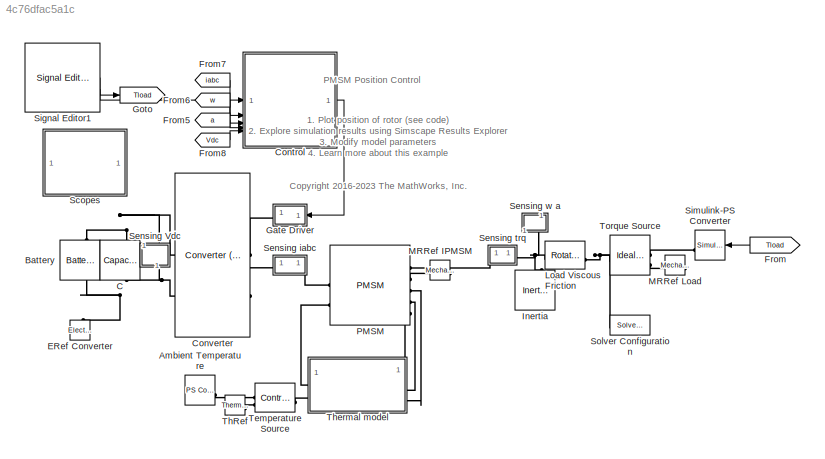
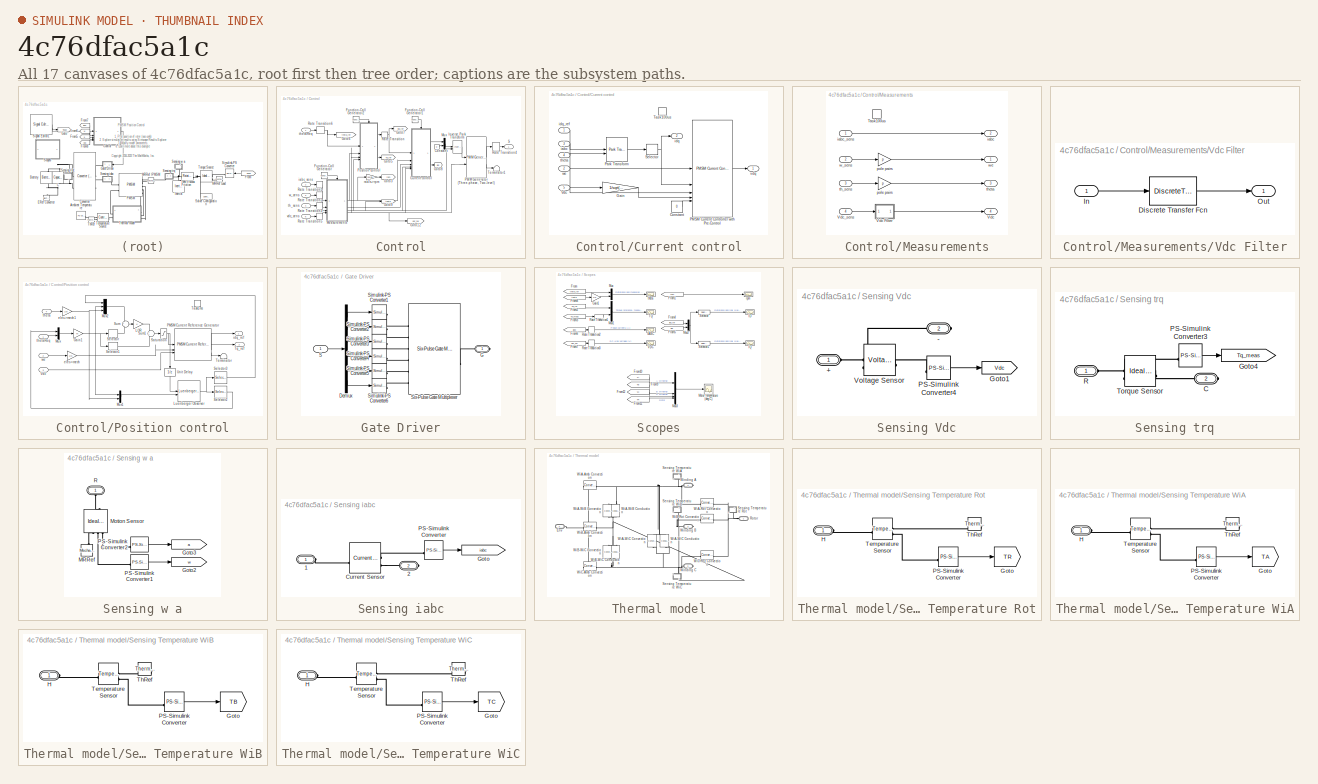
[diagram: thumbnail index - all 17 canvases of the model, root first then tree order]
MODEL slx_4c76dfac5a1c
KIND model
CONFIG AbsTol = auto
CONFIG EnableMultiTasking = off
CONFIG FixedStep = Ts
CONFIG MaxStep = auto
CONFIG MinStep = auto
CONFIG PreLoadFcn = PMSMPositionControlData;
CONFIG RelTol = 1e-3
CONFIG SampleTimeConstraint = Unconstrained
CONFIG SolverName = FixedStepDiscrete
CONFIG StartTime = 0.0
CONFIG StopTime = 4.5
BLOCK [Reference] Ambient Temperature  REF=fl_lib/Physical Signals/Sources/PS Constant
  SourceBlock = fl_lib/Physical Signals/Sources/PS Constant
  SourceType = PS Constant
BLOCK [Reference] Battery  REF=batteryecm_lib/Battery
  NameLocation = left
  SourceBlock = batteryecm_lib/Battery
  SourceType = Battery
BLOCK [Reference] C  REF=fl_lib/Electrical/Electrical Elements/Capacitor
  NameLocation = left
  SourceBlock = fl_lib/Electrical/Electrical Elements/Capacitor
  SourceType = Capacitor
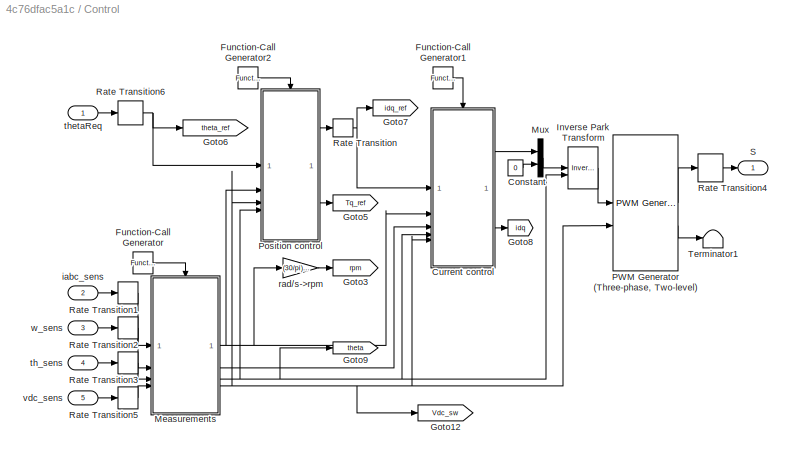
BLOCK [SubSystem] Control
  NameLocation = top
BLOCK [Constant] Control/Constant
  SampleTime = -1
  Value = 0
BLOCK [SubSystem] Control/Current control
BLOCK [Constant] Control/Current control/Constant
  SampleTime = -1
  Value = 0
BLOCK [Gain] Control/Current control/Gain
  Gain = 1/sqrt(3)
BLOCK [Reference] Control/Current control/PMSM Current Controller with Pre-Control  REF=eePmsmCurrentController/PMSM Current Controller
with Pre-Control
  SourceBlock = eePmsmCurrentController/PMSM Current Controller\nwith Pre-Control
  SourceType = PMSM Current Controller with Pre-Control
BLOCK [Reference] Control/Current control/Park Transform  REF=eeTransforms/Park Transform
  SourceBlock = eeTransforms/Park Transform
  SourceType = Park Transform
BLOCK [Selector] Control/Current control/Selector
  IndexOptions = Index vector (dialog)
  Indices = [1 2]
  InputPortWidth = 3
  OutputSizes = 1
BLOCK [TriggerPort] Control/Current control/Task100us
  PortDimensions = 1
  StatesWhenEnabling = held
  TriggerType = function-call
  VariantControl = Variant
BLOCK [Inport] Control/Current control/Vdc
  Port = 5
BLOCK [Inport] Control/Current control/iabc
  Port = 3
BLOCK [Outport] Control/Current control/idq
  Port = 2
  VectorParamsAs1DForOutWhenUnconnected = off
BLOCK [Inport] Control/Current control/idq_ref
BLOCK [Inport] Control/Current control/theta
  Port = 4
BLOCK [Outport] Control/Current control/vdq
  VectorParamsAs1DForOutWhenUnconnected = off
BLOCK [Inport] Control/Current control/we
  Port = 2
BLOCK [Reference] Control/Function-Call Generator  REF=simulink/Ports &
Subsystems/Function-Call
Generator
  SourceBlock = simulink/Ports &\nSubsystems/Function-Call\nGenerator
  SourceType = Function-Call Generator
BLOCK [Reference] Control/Function-Call Generator1  REF=simulink/Ports &
Subsystems/Function-Call
Generator
  SourceBlock = simulink/Ports &\nSubsystems/Function-Call\nGenerator
  SourceType = Function-Call Generator
BLOCK [Reference] Control/Function-Call Generator2  REF=simulink/Ports &
Subsystems/Function-Call
Generator
  SourceBlock = simulink/Ports &\nSubsystems/Function-Call\nGenerator
  SourceType = Function-Call Generator
BLOCK [Goto] Control/Goto12
  GotoTag = Vdc_sw
  TagVisibility = global
BLOCK [Goto] Control/Goto3
  GotoTag = rpm
  TagVisibility = global
BLOCK [Goto] Control/Goto5
  GotoTag = Tq_ref
  TagVisibility = global
BLOCK [Goto] Control/Goto6
  GotoTag = theta_ref
  TagVisibility = global
BLOCK [Goto] Control/Goto7
  GotoTag = idq_ref
  TagVisibility = global
BLOCK [Goto] Control/Goto8
  GotoTag = idq
  TagVisibility = global
BLOCK [Goto] Control/Goto9
  GotoTag = theta
  TagVisibility = global
BLOCK [Reference] Control/Inverse Park Transform  REF=eeTransforms/Inverse
Park Transform
  SourceBlock = eeTransforms/Inverse\nPark Transform
  SourceType = Inverse Park Transform
BLOCK [SubSystem] Control/Measurements
BLOCK [TriggerPort] Control/Measurements/Task100us
  PortDimensions = 1
  StatesWhenEnabling = held
  TriggerType = function-call
  VariantControl = Variant
BLOCK [Outport] Control/Measurements/Vdc
  Port = 4
  VectorParamsAs1DForOutWhenUnconnected = off
BLOCK [SubSystem] Control/Measurements/Vdc Filter
BLOCK [DiscreteTransferFcn] Control/Measurements/Vdc Filter/Discrete Transfer Fcn
  Denominator = den
  InputPortMap = u0
  Numerator = num
BLOCK [Inport] Control/Measurements/Vdc Filter/In
BLOCK [Outport] Control/Measurements/Vdc Filter/Out
  VectorParamsAs1DForOutWhenUnconnected = off
BLOCK [Inport] Control/Measurements/Vdc_sens
  Port = 4
BLOCK [Outport] Control/Measurements/iabc
  Port = 2
  VectorParamsAs1DForOutWhenUnconnected = off
BLOCK [Inport] Control/Measurements/iabc_sens
BLOCK [Gain] Control/Measurements/pole pairs
  Gain = p
BLOCK [Gain] Control/Measurements/pole pairs 
  Gain = p
BLOCK [Inport] Control/Measurements/th_sens
  Port = 3
BLOCK [Outport] Control/Measurements/theta
  Port = 3
  VectorParamsAs1DForOutWhenUnconnected = off
BLOCK [Inport] Control/Measurements/w_sens
  Port = 2
BLOCK [Outport] Control/Measurements/we
  VectorParamsAs1DForOutWhenUnconnected = off
BLOCK [Mux] Control/Mux
  DisplayOption = bar
  Inputs = 2
BLOCK [Reference] Control/PWM Generator (Three-phase, Two-level)  REF=eePwmGeneratorTwoLevel/PWM Generator
(Three-phase, Two-level)
  SourceBlock = eePwmGeneratorTwoLevel/PWM Generator\n(Three-phase, Two-level)
  SourceType = PWM Generator (three-phase, two-level)
BLOCK [SubSystem] Control/Position control
BLOCK [Gain] Control/Position control/Gain1
  Gain = M
  Multiplication = Matrix(K*u)
BLOCK [Gain] Control/Position control/LQR
  Gain = K
  Multiplication = Matrix(K*u)
BLOCK [Reference] Control/Position control/Luenberger Observer  REF=eeLuenbergerObserver/Luenberger Observer
  SourceBlock = eeLuenbergerObserver/Luenberger Observer
  SourceType = Luenberger Observer
BLOCK [Mux] Control/Position control/Mux
  DisplayOption = bar
  Inputs = 2
BLOCK [Mux] Control/Position control/Mux1
  DisplayOption = bar
  Inputs = 2
BLOCK [Mux] Control/Position control/Mux2
  DisplayOption = bar
  Inputs = 3
BLOCK [Reference] Control/Position control/PMSM Current Reference Generator  REF=eePmsmCurrentReferenceGen/PMSM Current Reference
Generator
  SourceBlock = eePmsmCurrentReferenceGen/PMSM Current Reference\nGenerator
  SourceType = PMSM Current Reference Generator
BLOCK [Saturate] Control/Position control/Saturation
  LowerLimit = -Tmax
  UpperLimit = Tmax
BLOCK [Selector] Control/Position control/Selector
  IndexOptions = Index vector (dialog)
  Indices = [1:3]
  InputPortWidth = 4
  OutputSizes = 1
BLOCK [Selector] Control/Position control/Selector1
  IndexOptions = Index vector (dialog)
  Indices = 4
  InputPortWidth = 4
  OutputSizes = 1
BLOCK [Selector] Control/Position control/Selector2
  IndexOptions = Index vector (dialog)
  Indices = [4]
  InputPortWidth = 4
  OutputSizes = 1
BLOCK [Selector] Control/Position control/Selector3
  IndexOptions = Index vector (dialog)
  Indices = [1]
  InputPortWidth = 4
  OutputSizes = 1
BLOCK [Sum] Control/Position control/Sum
  Inputs = +-
BLOCK [Sum] Control/Position control/Sum1
BLOCK [TriggerPort] Control/Position control/Task1ms
  PortDimensions = 1
  StatesWhenEnabling = held
  TriggerType = function-call
  VariantControl = Variant
BLOCK [Terminator] Control/Position control/Terminator
BLOCK [Outport] Control/Position control/Tq_ref
  Port = 2
  VectorParamsAs1DForOutWhenUnconnected = off
BLOCK [UnitDelay] Control/Position control/Unit Delay
  HasFrameUpgradeWarning = on
  NameLocation = left
  SampleTime = -1
BLOCK [Inport] Control/Position control/Vdc
  Port = 3
BLOCK [Gain] Control/Position control/elec->mech
  Gain = 1/p
BLOCK [Gain] Control/Position control/elec->mech1
  Gain = 1/p
BLOCK [Outport] Control/Position control/idq_ref
  VectorParamsAs1DForOutWhenUnconnected = off
BLOCK [Inport] Control/Position control/theta
  Port = 4
BLOCK [Inport] Control/Position control/thetaReq
BLOCK [Inport] Control/Position control/we
  Port = 2
BLOCK [RateTransition] Control/Rate Transition
BLOCK [RateTransition] Control/Rate Transition1
  OutPortSampleTime = Tsi
BLOCK [RateTransition] Control/Rate Transition2
  OutPortSampleTime = Tsi
BLOCK [RateTransition] Control/Rate Transition3
  OutPortSampleTime = Tsi
BLOCK [RateTransition] Control/Rate Transition4
  OutPortSampleTime = Ts
BLOCK [RateTransition] Control/Rate Transition5
  OutPortSampleTime = Tsi
BLOCK [RateTransition] Control/Rate Transition6
  OutPortSampleTime = Tso
BLOCK [Outport] Control/S
  VectorParamsAs1DForOutWhenUnconnected = off
BLOCK [Terminator] Control/Terminator1
BLOCK [Inport] Control/iabc_sens
  Port = 2
BLOCK [Gain] Control/rad//s->rpm
  Gain = (30/pi)/p
BLOCK [Inport] Control/th_sens
  Port = 4
BLOCK [Inport] Control/thetaReq
BLOCK [Inport] Control/vdc_sens
  Port = 5
BLOCK [Inport] Control/w_sens
  Port = 3
BLOCK [Reference] Converter  REF=ee_lib/Semiconductors &
Converters/Converters/Converter
(Three-Phase)
  SourceBlock = ee_lib/Semiconductors &\nConverters/Converters/Converter\n(Three-Phase)
  SourceType = Converter\n(Three-Phase)
BLOCK [Reference] ERef Converter  REF=fl_lib/Electrical/Electrical Elements/Electrical Reference
  NameLocation = right
  SourceBlock = fl_lib/Electrical/Electrical Elements/Electrical Reference
  SourceType = Electrical Reference
BLOCK [From] From
  GotoTag = Tload
BLOCK [From] From5
  GotoTag = a
  TagVisibility = global
BLOCK [From] From6
  GotoTag = w
  TagVisibility = global
BLOCK [From] From7
  GotoTag = iabc
  TagVisibility = global
BLOCK [From] From8
  GotoTag = Vdc
  TagVisibility = global
BLOCK [SubSystem] Gate Driver
  NameLocation = top
BLOCK [Demux] Gate Driver/Demux
  Outputs = 6
BLOCK [PMIOPort] Gate Driver/G
  Side = Right
BLOCK [Inport] Gate Driver/S
BLOCK [Reference] Gate Driver/Simulink-PS Converter1  REF=nesl_utility/Simulink-PS
Converter
  SourceBlock = nesl_utility/Simulink-PS\nConverter
  SourceType = Simulink-PS\nConverter
BLOCK [Reference] Gate Driver/Simulink-PS Converter2  REF=nesl_utility/Simulink-PS
Converter
  SourceBlock = nesl_utility/Simulink-PS\nConverter
  SourceType = Simulink-PS\nConverter
BLOCK [Reference] Gate Driver/Simulink-PS Converter3  REF=nesl_utility/Simulink-PS
Converter
  SourceBlock = nesl_utility/Simulink-PS\nConverter
  SourceType = Simulink-PS\nConverter
BLOCK [Reference] Gate Driver/Simulink-PS Converter4  REF=nesl_utility/Simulink-PS
Converter
  SourceBlock = nesl_utility/Simulink-PS\nConverter
  SourceType = Simulink-PS\nConverter
BLOCK [Reference] Gate Driver/Simulink-PS Converter5  REF=nesl_utility/Simulink-PS
Converter
  SourceBlock = nesl_utility/Simulink-PS\nConverter
  SourceType = Simulink-PS\nConverter
BLOCK [Reference] Gate Driver/Simulink-PS Converter6  REF=nesl_utility/Simulink-PS
Converter
  SourceBlock = nesl_utility/Simulink-PS\nConverter
  SourceType = Simulink-PS\nConverter
BLOCK [Reference] Gate Driver/Six-Pulse Gate Multiplexer  REF=ee_lib/Semiconductors &
Converters/Converters/Six-Pulse Gate
Multiplexer
  SourceBlock = ee_lib/Semiconductors &\nConverters/Converters/Six-Pulse Gate\nMultiplexer
  SourceType = Six-Pulse Gate\nMultiplexer
BLOCK [Goto] Goto
  GotoTag = Tload
BLOCK [Reference] Inertia  REF=fl_lib/Mechanical/Rotational Elements/Inertia
  NameLocation = left
  SourceBlock = fl_lib/Mechanical/Rotational Elements/Inertia
  SourceType = Inertia
BLOCK [Reference] Load Viscous Friction  REF=fl_lib/Mechanical/Rotational Elements/Rotational Damper
  NameLocation = top
  SourceBlock = fl_lib/Mechanical/Rotational Elements/Rotational Damper
  SourceType = Rotational Damper
BLOCK [Reference] MRRef IPMSM  REF=fl_lib/Mechanical/Rotational Elements/Mechanical
Rotational Reference
  NameLocation = top
  SourceBlock = fl_lib/Mechanical/Rotational Elements/Mechanical\nRotational Reference
  SourceType = Mechanical\nRotational Reference
BLOCK [Reference] MRRef Load  REF=fl_lib/Mechanical/Rotational Elements/Mechanical
Rotational Reference
  NameLocation = top
  SourceBlock = fl_lib/Mechanical/Rotational Elements/Mechanical\nRotational Reference
  SourceType = Mechanical\nRotational Reference
BLOCK [Reference] PMSM  REF=ee_lib/Electromechanical/Permanent Magnet/PMSM
  SourceBlock = ee_lib/Electromechanical/Permanent Magnet/PMSM
  SourceType = PMSM
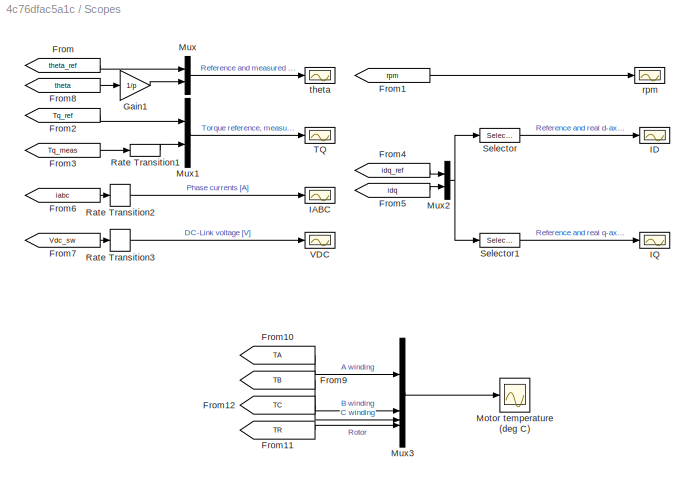
BLOCK [SubSystem] Scopes
BLOCK [From] Scopes/From
  GotoTag = theta_ref
  TagVisibility = global
BLOCK [From] Scopes/From1
  GotoTag = rpm
  TagVisibility = global
BLOCK [From] Scopes/From10
  GotoTag = TA
  TagVisibility = global
BLOCK [From] Scopes/From11
  GotoTag = TR
  TagVisibility = global
BLOCK [From] Scopes/From12
  GotoTag = TC
  TagVisibility = global
BLOCK [From] Scopes/From2
  GotoTag = Tq_ref
  TagVisibility = global
BLOCK [From] Scopes/From3
  GotoTag = Tq_meas
  TagVisibility = global
BLOCK [From] Scopes/From4
  GotoTag = idq_ref
  TagVisibility = global
BLOCK [From] Scopes/From5
  GotoTag = idq
  TagVisibility = global
BLOCK [From] Scopes/From6
  GotoTag = iabc
  TagVisibility = global
BLOCK [From] Scopes/From7
  GotoTag = Vdc_sw
  TagVisibility = global
BLOCK [From] Scopes/From8
  GotoTag = theta
  TagVisibility = global
BLOCK [From] Scopes/From9
  GotoTag = TB
  TagVisibility = global
BLOCK [Gain] Scopes/Gain1
  Gain = 1/p
BLOCK [Scope] Scopes/IABC
  Floating = off
  NumInputPorts = 1
  ScopeSpecificationString = Simulink.scopes.TimeScopeBlockCfg('CurrentConfiguration', extmgr.ConfigurationSet(extmgr.Configuration('Core','General UI',true),extmgr.Configuration('Core','Source UI',true),extmgr.Configuration('Sources','WiredSimulink',true,'DataLoggingVariableName','ScopeData1','DataLoggingSaveFormat','Array','DataLoggingDecimation','1','DataLoggingDecimateData',true),extmgr.Configuration('Visuals','Time Domai...<+1599ch>
BLOCK [Scope] Scopes/ID
  Floating = off
  NumInputPorts = 1
  ScopeSpecificationString = Simulink.scopes.TimeScopeBlockCfg('CurrentConfiguration', extmgr.ConfigurationSet(extmgr.Configuration('Core','General UI',true),extmgr.Configuration('Core','Source UI',true),extmgr.Configuration('Sources','WiredSimulink',true,'DataLoggingVariableName','ScopeData2','DataLoggingSaveFormat','Array','DataLoggingDecimation','1','DataLoggingDecimateData',true),extmgr.Configuration('Visuals','Time Domai...<+1610ch>
BLOCK [Scope] Scopes/IQ
  Floating = off
  NumInputPorts = 1
  ScopeSpecificationString = Simulink.scopes.TimeScopeBlockCfg('CurrentConfiguration', extmgr.ConfigurationSet(extmgr.Configuration('Core','General UI',true),extmgr.Configuration('Core','Source UI',true),extmgr.Configuration('Sources','WiredSimulink',true,'DataLoggingVariableName','ScopeData3','DataLoggingSaveFormat','Array','DataLoggingDecimation','1','DataLoggingDecimateData',true),extmgr.Configuration('Visuals','Time Domai...<+1686ch>
BLOCK [Scope] Scopes/Motor temperature (deg C)
  Floating = off
  NumInputPorts = 1
  ScopeSpecificationString = Simulink.scopes.TimeScopeBlockCfg('CurrentConfiguration', extmgr.ConfigurationSet(extmgr.Configuration('Core','General UI',true),extmgr.Configuration('Core','Source UI',true),extmgr.Configuration('Sources','WiredSimulink',true,'DataLoggingVariableName','ScopeData1','DataLoggingSaveFormat','StructureWithTime','DataLoggingMaxPoints','500000','DataLoggingDecimation','10','DataLoggingDecimateData',tru...<+1914ch>
BLOCK [Mux] Scopes/Mux
  DisplayOption = bar
  Inputs = 2
BLOCK [Mux] Scopes/Mux1
  DisplayOption = bar
  Inputs = 2
BLOCK [Mux] Scopes/Mux2
  DisplayOption = bar
  Inputs = 2
BLOCK [Mux] Scopes/Mux3
  DisplayOption = bar
BLOCK [RateTransition] Scopes/Rate Transition1
BLOCK [RateTransition] Scopes/Rate Transition2
  OutPortSampleTime = 1e-4
BLOCK [RateTransition] Scopes/Rate Transition3
  OutPortSampleTime = 1e-4
BLOCK [Selector] Scopes/Selector
  IndexOptions = Index vector (dialog)
  Indices = [1 3]
  InputPortWidth = 4
  OutputSizes = 1
BLOCK [Selector] Scopes/Selector1
  IndexOptions = Index vector (dialog)
  Indices = [2 4]
  InputPortWidth = 4
  OutputSizes = 1
BLOCK [Scope] Scopes/TQ
  Floating = off
  NumInputPorts = 1
  ScopeSpecificationString = Simulink.scopes.TimeScopeBlockCfg('CurrentConfiguration', extmgr.ConfigurationSet(extmgr.Configuration('Core','General UI',true),extmgr.Configuration('Core','Source UI',true),extmgr.Configuration('Sources','WiredSimulink',true,'DataLoggingVariableName','ScopeData7','DataLoggingSaveFormat','Array','DataLoggingDecimation','1','DataLoggingDecimateData',true),extmgr.Configuration('Visuals','Time Domai...<+1622ch>
BLOCK [Scope] Scopes/VDC
  Floating = off
  NumInputPorts = 1
  ScopeSpecificationString = Simulink.scopes.TimeScopeBlockCfg('CurrentConfiguration', extmgr.ConfigurationSet(extmgr.Configuration('Core','General UI',true),extmgr.Configuration('Core','Source UI',true),extmgr.Configuration('Sources','WiredSimulink',true,'DataLoggingVariableName','ScopeData8','DataLoggingSaveFormat','Array','DataLoggingDecimation','1','DataLoggingDecimateData',true),extmgr.Configuration('Visuals','Time Domai...<+1542ch>
BLOCK [Scope] Scopes/rpm
  Floating = off
  NumInputPorts = 1
  ScopeSpecificationString = Simulink.scopes.TimeScopeBlockCfg('CurrentConfiguration', extmgr.ConfigurationSet(extmgr.Configuration('Core','General UI',true),extmgr.Configuration('Core','Source UI',true),extmgr.Configuration('Sources','WiredSimulink',true,'DataLoggingVariableName','ScopeData6','DataLoggingSaveFormat','Array','DataLoggingDecimation','1','DataLoggingDecimateData',true),extmgr.Configuration('Visuals','Time Domai...<+1528ch>
BLOCK [Scope] Scopes/theta
  Floating = off
  NumInputPorts = 1
  ScopeSpecificationString = Simulink.scopes.TimeScopeBlockCfg('CurrentConfiguration', extmgr.ConfigurationSet(extmgr.Configuration('Core','General UI',true),extmgr.Configuration('Core','Source UI',true),extmgr.Configuration('Sources','WiredSimulink',true,'DataLoggingVariableName','ScopeData5','DataLoggingSaveFormat','Array','DataLoggingDecimation','1','DataLoggingDecimateData',true),extmgr.Configuration('Visuals','Time Domai...<+1622ch>
BLOCK [SubSystem] Sensing Vdc
  NameLocation = right
BLOCK [PMIOPort] Sensing Vdc/+
  Side = Left
BLOCK [PMIOPort] Sensing Vdc/-
  Port = 2
  Side = Right
BLOCK [Goto] Sensing Vdc/Goto1
  GotoTag = Vdc
  TagVisibility = global
BLOCK [Reference] Sensing Vdc/PS-Simulink Converter4  REF=nesl_utility/PS-Simulink
Converter
  SourceBlock = nesl_utility/PS-Simulink\nConverter
  SourceType = PS-Simulink\nConverter
BLOCK [Reference] Sensing Vdc/Voltage Sensor  REF=fl_lib/Electrical/Electrical Sensors/Voltage Sensor
  SourceBlock = fl_lib/Electrical/Electrical Sensors/Voltage Sensor
  SourceType = Voltage Sensor
BLOCK [SubSystem] Sensing iabc
BLOCK [PMIOPort] Sensing iabc/1
  Side = Left
BLOCK [PMIOPort] Sensing iabc/2
  Port = 2
  Side = Right
BLOCK [Reference] Sensing iabc/Current Sensor  REF=ee_lib/Sensors &
Transducers/Current Sensor
(Three-Phase)
  SourceBlock = ee_lib/Sensors &\nTransducers/Current Sensor\n(Three-Phase)
  SourceType = Current Sensor\n(Three-Phase)
BLOCK [Goto] Sensing iabc/Goto
  GotoTag = iabc
  TagVisibility = global
BLOCK [Reference] Sensing iabc/PS-Simulink Converter  REF=nesl_utility/PS-Simulink
Converter
  SourceBlock = nesl_utility/PS-Simulink\nConverter
  SourceType = PS-Simulink\nConverter
BLOCK [SubSystem] Sensing trq
BLOCK [PMIOPort] Sensing trq/C
  Port = 2
  Side = Right
BLOCK [Goto] Sensing trq/Goto4
  GotoTag = Tq_meas
  TagVisibility = global
BLOCK [Reference] Sensing trq/PS-Simulink Converter3  REF=nesl_utility/PS-Simulink
Converter
  SourceBlock = nesl_utility/PS-Simulink\nConverter
  SourceType = PS-Simulink\nConverter
BLOCK [PMIOPort] Sensing trq/R
  Side = Left
BLOCK [Reference] Sensing trq/Torque Sensor  REF=fl_lib/Mechanical/Mechanical Sensors/Ideal Torque Sensor
  SourceBlock = fl_lib/Mechanical/Mechanical Sensors/Ideal Torque Sensor
  SourceType = Ideal Torque Sensor
BLOCK [SubSystem] Sensing w a
  NameLocation = right
BLOCK [Goto] Sensing w a/Goto2
  GotoTag = w
  TagVisibility = global
BLOCK [Goto] Sensing w a/Goto3
  GotoTag = a
  TagVisibility = global
BLOCK [Reference] Sensing w a/MRRef  REF=fl_lib/Mechanical/Rotational Elements/Mechanical
Rotational Reference
  NameLocation = left
  SourceBlock = fl_lib/Mechanical/Rotational Elements/Mechanical\nRotational Reference
  SourceType = Mechanical\nRotational Reference
BLOCK [Reference] Sensing w a/Motion Sensor  REF=fl_lib/Mechanical/Mechanical Sensors/Ideal Rotational
Motion Sensor
  NameLocation = right
  SourceBlock = fl_lib/Mechanical/Mechanical Sensors/Ideal Rotational\nMotion Sensor
  SourceType = Ideal Rotational\nMotion Sensor
BLOCK [Reference] Sensing w a/PS-Simulink Converter1  REF=nesl_utility/PS-Simulink
Converter
  SourceBlock = nesl_utility/PS-Simulink\nConverter
  SourceType = PS-Simulink\nConverter
BLOCK [Reference] Sensing w a/PS-Simulink Converter2  REF=nesl_utility/PS-Simulink
Converter
  SourceBlock = nesl_utility/PS-Simulink\nConverter
  SourceType = PS-Simulink\nConverter
BLOCK [PMIOPort] Sensing w a/R
  NameLocation = right
  Side = Left
BLOCK [Reference] Signal Editor1  REF=SignalEditorBlockLib/Signal Editor
  SourceBlock = SignalEditorBlockLib/Signal Editor
  SourceType = SignalEditor
  UserDataPersistent = on
BLOCK [Reference] Simulink-PS Converter  REF=nesl_utility/Simulink-PS
Converter
  SourceBlock = nesl_utility/Simulink-PS\nConverter
  SourceType = Simulink-PS\nConverter
BLOCK [Reference] Solver Configuration  REF=nesl_utility/Solver
Configuration
  SourceBlock = nesl_utility/Solver\nConfiguration
  SourceType = Solver\nConfiguration
BLOCK [Reference] Temperature Source  REF=fl_lib/Thermal/Thermal Sources/Controlled
Temperature Source
  SourceBlock = fl_lib/Thermal/Thermal Sources/Controlled\nTemperature Source
  SourceType = Controlled\nTemperature Source
BLOCK [Reference] ThRef  REF=fl_lib/Thermal/Thermal Elements/Thermal Reference
  SourceBlock = fl_lib/Thermal/Thermal Elements/Thermal Reference
  SourceType = Thermal Reference
BLOCK [SubSystem] Thermal model
  Tag = PublishSubsystem
BLOCK [PMIOPort] Thermal model/Env
  Port = 5
  Side = Left
BLOCK [PMIOPort] Thermal model/Rotor
  Side = Left
BLOCK [SubSystem] Thermal model/Sensing Temperature Rot
  NameLocation = right
BLOCK [Goto] Thermal model/Sensing Temperature Rot/Goto
  GotoTag = TR
  TagVisibility = global
BLOCK [PMIOPort] Thermal model/Sensing Temperature Rot/H
  Side = Left
BLOCK [Reference] Thermal model/Sensing Temperature Rot/PS-Simulink Converter  REF=nesl_utility/PS-Simulink
Converter
  SourceBlock = nesl_utility/PS-Simulink\nConverter
  SourceType = PS-Simulink\nConverter
BLOCK [Reference] Thermal model/Sensing Temperature Rot/Temperature Sensor  REF=fl_lib/Thermal/Thermal Sensors/Temperature Sensor
  SourceBlock = fl_lib/Thermal/Thermal Sensors/Temperature Sensor
  SourceType = Temperature Sensor
BLOCK [Reference] Thermal model/Sensing Temperature Rot/ThRef  REF=fl_lib/Thermal/Thermal Elements/Thermal Reference
  NameLocation = top
  SourceBlock = fl_lib/Thermal/Thermal Elements/Thermal Reference
  SourceType = Thermal Reference
BLOCK [SubSystem] Thermal model/Sensing Temperature WiA
  NameLocation = left
BLOCK [Goto] Thermal model/Sensing Temperature WiA/Goto
  GotoTag = TA
  TagVisibility = global
BLOCK [PMIOPort] Thermal model/Sensing Temperature WiA/H
  Side = Left
BLOCK [Reference] Thermal model/Sensing Temperature WiA/PS-Simulink Converter  REF=nesl_utility/PS-Simulink
Converter
  SourceBlock = nesl_utility/PS-Simulink\nConverter
  SourceType = PS-Simulink\nConverter
BLOCK [Reference] Thermal model/Sensing Temperature WiA/Temperature Sensor  REF=fl_lib/Thermal/Thermal Sensors/Temperature Sensor
  SourceBlock = fl_lib/Thermal/Thermal Sensors/Temperature Sensor
  SourceType = Temperature Sensor
BLOCK [Reference] Thermal model/Sensing Temperature WiA/ThRef  REF=fl_lib/Thermal/Thermal Elements/Thermal Reference
  NameLocation = top
  SourceBlock = fl_lib/Thermal/Thermal Elements/Thermal Reference
  SourceType = Thermal Reference
BLOCK [SubSystem] Thermal model/Sensing Temperature WiB
  NameLocation = left
BLOCK [Goto] Thermal model/Sensing Temperature WiB/Goto
  GotoTag = TB
  TagVisibility = global
BLOCK [PMIOPort] Thermal model/Sensing Temperature WiB/H
  Side = Left
BLOCK [Reference] Thermal model/Sensing Temperature WiB/PS-Simulink Converter  REF=nesl_utility/PS-Simulink
Converter
  SourceBlock = nesl_utility/PS-Simulink\nConverter
  SourceType = PS-Simulink\nConverter
BLOCK [Reference] Thermal model/Sensing Temperature WiB/Temperature Sensor  REF=fl_lib/Thermal/Thermal Sensors/Temperature Sensor
  SourceBlock = fl_lib/Thermal/Thermal Sensors/Temperature Sensor
  SourceType = Temperature Sensor
BLOCK [Reference] Thermal model/Sensing Temperature WiB/ThRef  REF=fl_lib/Thermal/Thermal Elements/Thermal Reference
  NameLocation = top
  SourceBlock = fl_lib/Thermal/Thermal Elements/Thermal Reference
  SourceType = Thermal Reference
BLOCK [SubSystem] Thermal model/Sensing Temperature WiC
  NameLocation = left
BLOCK [Goto] Thermal model/Sensing Temperature WiC/Goto
  GotoTag = TC
  TagVisibility = global
BLOCK [PMIOPort] Thermal model/Sensing Temperature WiC/H
  Side = Left
BLOCK [Reference] Thermal model/Sensing Temperature WiC/PS-Simulink Converter  REF=nesl_utility/PS-Simulink
Converter
  SourceBlock = nesl_utility/PS-Simulink\nConverter
  SourceType = PS-Simulink\nConverter
BLOCK [Reference] Thermal model/Sensing Temperature WiC/Temperature Sensor  REF=fl_lib/Thermal/Thermal Sensors/Temperature Sensor
  SourceBlock = fl_lib/Thermal/Thermal Sensors/Temperature Sensor
  SourceType = Temperature Sensor
BLOCK [Reference] Thermal model/Sensing Temperature WiC/ThRef  REF=fl_lib/Thermal/Thermal Elements/Thermal Reference
  NameLocation = top
  SourceBlock = fl_lib/Thermal/Thermal Elements/Thermal Reference
  SourceType = Thermal Reference
BLOCK [Reference] Thermal model/WiA-Amb Convection  REF=fl_lib/Thermal/Thermal Elements/Convective Heat
Transfer
  SourceBlock = fl_lib/Thermal/Thermal Elements/Convective Heat\nTransfer
  SourceType = Convective Heat\nTransfer
BLOCK [Reference] Thermal model/WiA-Rot Convection  REF=fl_lib/Thermal/Thermal Elements/Convective Heat
Transfer
  NameLocation = top
  SourceBlock = fl_lib/Thermal/Thermal Elements/Convective Heat\nTransfer
  SourceType = Convective Heat\nTransfer
BLOCK [Reference] Thermal model/WiA-WiB Conduction  REF=fl_lib/Thermal/Thermal Elements/Conductive Heat
Transfer
  NameLocation = right
  SourceBlock = fl_lib/Thermal/Thermal Elements/Conductive Heat\nTransfer
  SourceType = Conductive Heat\nTransfer
BLOCK [Reference] Thermal model/WiA-WiB Convection  REF=fl_lib/Thermal/Thermal Elements/Convective Heat
Transfer
  NameLocation = left
  SourceBlock = fl_lib/Thermal/Thermal Elements/Convective Heat\nTransfer
  SourceType = Convective Heat\nTransfer
BLOCK [Reference] Thermal model/WiA-WiC Conduction  REF=fl_lib/Thermal/Thermal Elements/Conductive Heat
Transfer
  NameLocation = right
  SourceBlock = fl_lib/Thermal/Thermal Elements/Conductive Heat\nTransfer
  SourceType = Conductive Heat\nTransfer
BLOCK [Reference] Thermal model/WiA-WiC Convection  REF=fl_lib/Thermal/Thermal Elements/Convective Heat
Transfer
  NameLocation = left
  SourceBlock = fl_lib/Thermal/Thermal Elements/Convective Heat\nTransfer
  SourceType = Convective Heat\nTransfer
BLOCK [Reference] Thermal model/WiB-Amb Convection  REF=fl_lib/Thermal/Thermal Elements/Convective Heat
Transfer
  SourceBlock = fl_lib/Thermal/Thermal Elements/Convective Heat\nTransfer
  SourceType = Convective Heat\nTransfer
BLOCK [Reference] Thermal model/WiB-Rot Convection  REF=fl_lib/Thermal/Thermal Elements/Convective Heat
Transfer
  SourceBlock = fl_lib/Thermal/Thermal Elements/Convective Heat\nTransfer
  SourceType = Convective Heat\nTransfer
BLOCK [Reference] Thermal model/WiB-WiC Conduction  REF=fl_lib/Thermal/Thermal Elements/Conductive Heat
Transfer
  NameLocation = right
  SourceBlock = fl_lib/Thermal/Thermal Elements/Conductive Heat\nTransfer
  SourceType = Conductive Heat\nTransfer
BLOCK [Reference] Thermal model/WiB-WiC Convection  REF=fl_lib/Thermal/Thermal Elements/Convective Heat
Transfer
  NameLocation = left
  SourceBlock = fl_lib/Thermal/Thermal Elements/Convective Heat\nTransfer
  SourceType = Convective Heat\nTransfer
BLOCK [Reference] Thermal model/WiC-Amb Convection  REF=fl_lib/Thermal/Thermal Elements/Convective Heat
Transfer
  SourceBlock = fl_lib/Thermal/Thermal Elements/Convective Heat\nTransfer
  SourceType = Convective Heat\nTransfer
BLOCK [Reference] Thermal model/WiC-Rot Convection  REF=fl_lib/Thermal/Thermal Elements/Convective Heat
Transfer
  NameLocation = top
  SourceBlock = fl_lib/Thermal/Thermal Elements/Convective Heat\nTransfer
  SourceType = Convective Heat\nTransfer
BLOCK [PMIOPort] Thermal model/Winding A
  Port = 4
  Side = Right
BLOCK [PMIOPort] Thermal model/Winding B
  Port = 3
  Side = Right
BLOCK [PMIOPort] Thermal model/Winding C
  NameLocation = top
  Port = 2
  Side = Right
BLOCK [Reference] Torque Source  REF=fl_lib/Mechanical/Mechanical Sources/Ideal Torque Source
  SourceBlock = fl_lib/Mechanical/Mechanical Sources/Ideal Torque Source
  SourceType = Ideal Torque Source
ANNOTATION (root): 1. Plot position of rotor ( see code ) 2. Explore simulation results using Simscape Results Explorer 3. Modify model parameters 4. Learn more about this example
ANNOTATION (root): <copyright redacted>
ANNOTATION (root): PMSM Position Control
LINE Control/Constant:1 -> Control/Mux:2
LINE Control/Current control/Constant:1 -> Control/Current control/PMSM Current Controller with Pre-Control:5
LINE Control/Current control/Gain:1 -> Control/Current control/PMSM Current Controller with Pre-Control:4
LINE Control/Current control/PMSM Current Controller with Pre-Control:1 -> Control/Current control/vdq:1
LINE Control/Current control/Park Transform:1 -> Control/Current control/Selector:1
NET Control/Current control/Selector:1 -> Control/Current control/PMSM Current Controller with Pre-Control:2, Control/Current control/idq:1
LINE Control/Current control/Vdc:1 -> Control/Current control/Gain:1
LINE Control/Current control/iabc:1 -> Control/Current control/Park Transform:1
LINE Control/Current control/idq_ref:1 -> Control/Current control/PMSM Current Controller with Pre-Control:1
LINE Control/Current control/theta:1 -> Control/Current control/Park Transform:2
LINE Control/Current control/we:1 -> Control/Current control/PMSM Current Controller with Pre-Control:3
LINE Control/Current control:1 -> Control/Mux:1
LINE Control/Current control:2 -> Control/Goto8:1
LINE Control/Function-Call Generator1:1 -> Control/Current control:trigger
LINE Control/Function-Call Generator2:1 -> Control/Position control:trigger
LINE Control/Function-Call Generator:1 -> Control/Measurements:trigger
LINE Control/Inverse Park Transform:1 -> Control/PWM Generator (Three-phase, Two-level):1
LINE Control/Measurements/Vdc Filter/Discrete Transfer Fcn:1 -> Control/Measurements/Vdc Filter/Out:1
LINE Control/Measurements/Vdc Filter/In:1 -> Control/Measurements/Vdc Filter/Discrete Transfer Fcn:1
LINE Control/Measurements/Vdc Filter:1 -> Control/Measurements/Vdc:1
LINE Control/Measurements/Vdc_sens:1 -> Control/Measurements/Vdc Filter:1
LINE Control/Measurements/iabc_sens:1 -> Control/Measurements/iabc:1
LINE Control/Measurements/pole pairs :1 -> Control/Measurements/theta:1
LINE Control/Measurements/pole pairs:1 -> Control/Measurements/we:1
LINE Control/Measurements/th_sens:1 -> Control/Measurements/pole pairs :1
LINE Control/Measurements/w_sens:1 -> Control/Measurements/pole pairs:1
NET Control/Measurements:1 -> Control/Current control:2, Control/Position control:2, Control/rad//s->rpm:1
LINE Control/Measurements:2 -> Control/Current control:3
NET Control/Measurements:3 -> Control/Current control:4, Control/Goto9:1, Control/Inverse Park Transform:2, Control/Position control:4
NET Control/Measurements:4 -> Control/Current control:5, Control/Goto12:1, Control/PWM Generator (Three-phase, Two-level):2, Control/Position control:3
LINE Control/Mux:1 -> Control/Inverse Park Transform:1
LINE Control/PWM Generator (Three-phase, Two-level):1 -> Control/Rate Transition4:1
LINE Control/PWM Generator (Three-phase, Two-level):2 -> Control/Terminator1:1
NET Control/Position control/Gain1:1 -> Control/Position control/Selector1:1, Control/Position control/Selector:1
LINE Control/Position control/LQR:1 -> Control/Position control/Sum1:1
NET Control/Position control/Luenberger Observer:1 -> Control/Position control/Selector2:1, Control/Position control/Selector3:1
LINE Control/Position control/Mux1:1 -> Control/Position control/Luenberger Observer:2
LINE Control/Position control/Mux2:1 -> Control/Position control/Sum:1
LINE Control/Position control/Mux:1 -> Control/Position control/Gain1:1
LINE Control/Position control/PMSM Current Reference Generator:1 -> Control/Position control/idq_ref:1
LINE Control/Position control/PMSM Current Reference Generator:2 -> Control/Position control/Tq_ref:1
LINE Control/Position control/PMSM Current Reference Generator:3 -> Control/Position control/Terminator:1
NET Control/Position control/Saturation:1 -> Control/Position control/PMSM Current Reference Generator:1, Control/Position control/Unit Delay:1
LINE Control/Position control/Selector1:1 -> Control/Position control/Sum1:2
LINE Control/Position control/Selector2:1 -> Control/Position control/Mux:1
LINE Control/Position control/Selector3:1 -> Control/Position control/Mux2:1
LINE Control/Position control/Selector:1 -> Control/Position control/Sum:2
LINE Control/Position control/Sum1:1 -> Control/Position control/Saturation:1
LINE Control/Position control/Sum:1 -> Control/Position control/LQR:1
LINE Control/Position control/Unit Delay:1 -> Control/Position control/Luenberger Observer:1
LINE Control/Position control/Vdc:1 -> Control/Position control/PMSM Current Reference Generator:3
NET Control/Position control/elec->mech1:1 -> Control/Position control/Mux1:2, Control/Position control/Mux2:3
NET Control/Position control/elec->mech:1 -> Control/Position control/Mux1:1, Control/Position control/Mux2:2, Control/Position control/PMSM Current Reference Generator:2
LINE Control/Position control/theta:1 -> Control/Position control/elec->mech1:1
LINE Control/Position control/thetaReq:1 -> Control/Position control/Mux:2
LINE Control/Position control/we:1 -> Control/Position control/elec->mech:1
LINE Control/Position control:1 -> Control/Rate Transition:1
LINE Control/Position control:2 -> Control/Goto5:1
LINE Control/Rate Transition1:1 -> Control/Measurements:1
LINE Control/Rate Transition2:1 -> Control/Measurements:2
LINE Control/Rate Transition3:1 -> Control/Measurements:3
LINE Control/Rate Transition4:1 -> Control/S:1
LINE Control/Rate Transition5:1 -> Control/Measurements:4
NET Control/Rate Transition6:1 -> Control/Goto6:1, Control/Position control:1
NET Control/Rate Transition:1 -> Control/Current control:1, Control/Goto7:1
LINE Control/iabc_sens:1 -> Control/Rate Transition1:1
LINE Control/rad//s->rpm:1 -> Control/Goto3:1
LINE Control/th_sens:1 -> Control/Rate Transition3:1
LINE Control/thetaReq:1 -> Control/Rate Transition6:1
LINE Control/vdc_sens:1 -> Control/Rate Transition5:1
LINE Control/w_sens:1 -> Control/Rate Transition2:1
LINE Control:1 -> Gate Driver:1
LINE From5:1 -> Control:4
LINE From6:1 -> Control:3
LINE From7:1 -> Control:2
LINE From8:1 -> Control:5
LINE From:1 -> Simulink-PS Converter:1
LINE Gate Driver/Demux:1 -> Gate Driver/Simulink-PS Converter1:1
LINE Gate Driver/Demux:2 -> Gate Driver/Simulink-PS Converter2:1
LINE Gate Driver/Demux:3 -> Gate Driver/Simulink-PS Converter3:1
LINE Gate Driver/Demux:4 -> Gate Driver/Simulink-PS Converter4:1
LINE Gate Driver/Demux:5 -> Gate Driver/Simulink-PS Converter5:1
LINE Gate Driver/Demux:6 -> Gate Driver/Simulink-PS Converter6:1
LINE Gate Driver/S:1 -> Gate Driver/Demux:1
LINE Scopes/From10:1 -> Scopes/Mux3:1
LINE Scopes/From11:1 -> Scopes/Mux3:4
LINE Scopes/From12:1 -> Scopes/Mux3:3
LINE Scopes/From1:1 -> Scopes/rpm:1
LINE Scopes/From2:1 -> Scopes/Mux1:1
LINE Scopes/From3:1 -> Scopes/Rate Transition1:1
LINE Scopes/From4:1 -> Scopes/Mux2:1
LINE Scopes/From5:1 -> Scopes/Mux2:2
LINE Scopes/From6:1 -> Scopes/Rate Transition2:1
LINE Scopes/From7:1 -> Scopes/Rate Transition3:1
LINE Scopes/From8:1 -> Scopes/Gain1:1
LINE Scopes/From9:1 -> Scopes/Mux3:2
LINE Scopes/From:1 -> Scopes/Mux:1
LINE Scopes/Gain1:1 -> Scopes/Mux:2
LINE Scopes/Mux1:1 -> Scopes/TQ:1
NET Scopes/Mux2:1 -> Scopes/Selector1:1, Scopes/Selector:1
LINE Scopes/Mux3:1 -> Scopes/Motor temperature (deg C):1
LINE Scopes/Mux:1 -> Scopes/theta:1
LINE Scopes/Rate Transition1:1 -> Scopes/Mux1:2
LINE Scopes/Rate Transition2:1 -> Scopes/IABC:1
LINE Scopes/Rate Transition3:1 -> Scopes/VDC:1
LINE Scopes/Selector1:1 -> Scopes/IQ:1
LINE Scopes/Selector:1 -> Scopes/ID:1
LINE Sensing Vdc/PS-Simulink Converter4:1 -> Sensing Vdc/Goto1:1
LINE Sensing iabc/PS-Simulink Converter:1 -> Sensing iabc/Goto:1
LINE Sensing trq/PS-Simulink Converter3:1 -> Sensing trq/Goto4:1
LINE Sensing w a/PS-Simulink Converter1:1 -> Sensing w a/Goto2:1
LINE Sensing w a/PS-Simulink Converter2:1 -> Sensing w a/Goto3:1
LINE Signal Editor1:1 -> Control:1
LINE Signal Editor1:2 -> Goto:1
LINE Thermal model/Sensing Temperature Rot/PS-Simulink Converter:1 -> Thermal model/Sensing Temperature Rot/Goto:1
LINE Thermal model/Sensing Temperature WiA/PS-Simulink Converter:1 -> Thermal model/Sensing Temperature WiA/Goto:1
LINE Thermal model/Sensing Temperature WiB/PS-Simulink Converter:1 -> Thermal model/Sensing Temperature WiB/Goto:1
LINE Thermal model/Sensing Temperature WiC/PS-Simulink Converter:1 -> Thermal model/Sensing Temperature WiC/Goto:1
PLINE Ambient Temperature:RConn1 -- Temperature Source:RConn1
PNET net1: Battery:LConn1 -- C:LConn1 -- Converter:RConn1 -- Sensing Vdc:LConn1
PNET net2: Battery:RConn1 -- C:RConn1 -- Converter:RConn2 -- ERef Converter:LConn1 -- Sensing Vdc:RConn1
PLINE Converter:LConn1 -- Gate Driver:RConn1
PLINE Converter:LConn2 -- Sensing iabc:LConn1
PLINE Gate Driver/G:RConn1 -- Gate Driver/Six-Pulse Gate Multiplexer:RConn1
PLINE Gate Driver/Simulink-PS Converter1:RConn1 -- Gate Driver/Six-Pulse Gate Multiplexer:LConn1
PLINE Gate Driver/Simulink-PS Converter2:RConn1 -- Gate Driver/Six-Pulse Gate Multiplexer:LConn2
PLINE Gate Driver/Simulink-PS Converter3:RConn1 -- Gate Driver/Six-Pulse Gate Multiplexer:LConn3
PLINE Gate Driver/Simulink-PS Converter4:RConn1 -- Gate Driver/Six-Pulse Gate Multiplexer:LConn4
PLINE Gate Driver/Simulink-PS Converter5:RConn1 -- Gate Driver/Six-Pulse Gate Multiplexer:LConn5
PLINE Gate Driver/Simulink-PS Converter6:RConn1 -- Gate Driver/Six-Pulse Gate Multiplexer:LConn6
PNET net3: Inertia:LConn1 -- Load Viscous Friction:LConn1 -- Sensing trq:RConn1 -- Sensing w a:LConn1
PNET net4: Load Viscous Friction:RConn1 -- Solver Configuration:RConn1 -- Torque Source:LConn1
PLINE MRRef IPMSM:LConn1 -- PMSM:RConn2
PLINE MRRef Load:LConn1 -- Torque Source:RConn2
PLINE PMSM:LConn1 -- Sensing iabc:RConn1
PLINE PMSM:LConn2 -- Thermal model:LConn1
PLINE PMSM:RConn1 -- Sensing trq:LConn1
PLINE PMSM:RConn3 -- Thermal model:RConn3
PLINE PMSM:RConn4 -- Thermal model:RConn2
PLINE PMSM:RConn5 -- Thermal model:RConn1
PLINE Sensing Vdc/+:RConn1 -- Sensing Vdc/Voltage Sensor:LConn1
PLINE Sensing Vdc/-:RConn1 -- Sensing Vdc/Voltage Sensor:RConn2
PLINE Sensing Vdc/PS-Simulink Converter4:LConn1 -- Sensing Vdc/Voltage Sensor:RConn1
PLINE Sensing iabc/1:RConn1 -- Sensing iabc/Current Sensor:LConn1
PLINE Sensing iabc/2:RConn1 -- Sensing iabc/Current Sensor:RConn2
PLINE Sensing iabc/Current Sensor:RConn1 -- Sensing iabc/PS-Simulink Converter:LConn1
PLINE Sensing trq/C:RConn1 -- Sensing trq/Torque Sensor:RConn1
PLINE Sensing trq/PS-Simulink Converter3:LConn1 -- Sensing trq/Torque Sensor:RConn2
PLINE Sensing trq/R:RConn1 -- Sensing trq/Torque Sensor:LConn1
PLINE Sensing w a/MRRef:LConn1 -- Sensing w a/Motion Sensor:RConn1
PLINE Sensing w a/Motion Sensor:LConn1 -- Sensing w a/R:RConn1
PLINE Sensing w a/Motion Sensor:RConn2 -- Sensing w a/PS-Simulink Converter1:LConn1
PLINE Sensing w a/Motion Sensor:RConn3 -- Sensing w a/PS-Simulink Converter2:LConn1
PLINE Simulink-PS Converter:RConn1 -- Torque Source:RConn1
PLINE Temperature Source:LConn1 -- Thermal model:LConn2
PLINE Temperature Source:RConn2 -- ThRef:LConn1
PNET net5: Thermal model/Env:RConn1 -- Thermal model/WiA-Amb Convection:RConn1 -- Thermal model/WiB-Amb Convection:RConn1 -- Thermal model/WiC-Amb Convection:RConn1
PNET net6: Thermal model/Rotor:RConn1 -- Thermal model/Sensing Temperature Rot:LConn1 -- Thermal model/WiA-Rot Convection:LConn1 -- Thermal model/WiB-Rot Convection:LConn1 -- Thermal model/WiC-Rot Convection:LConn1
PLINE Thermal model/Sensing Temperature Rot/H:RConn1 -- Thermal model/Sensing Temperature Rot/Temperature Sensor:LConn1
PLINE Thermal model/Sensing Temperature Rot/PS-Simulink Converter:LConn1 -- Thermal model/Sensing Temperature Rot/Temperature Sensor:RConn2
PLINE Thermal model/Sensing Temperature Rot/Temperature Sensor:RConn1 -- Thermal model/Sensing Temperature Rot/ThRef:LConn1
PLINE Thermal model/Sensing Temperature WiA/H:RConn1 -- Thermal model/Sensing Temperature WiA/Temperature Sensor:LConn1
PLINE Thermal model/Sensing Temperature WiA/PS-Simulink Converter:LConn1 -- Thermal model/Sensing Temperature WiA/Temperature Sensor:RConn2
PLINE Thermal model/Sensing Temperature WiA/Temperature Sensor:RConn1 -- Thermal model/Sensing Temperature WiA/ThRef:LConn1
PNET net7: Thermal model/Sensing Temperature WiA:LConn1 -- Thermal model/WiA-Amb Convection:LConn1 -- Thermal model/WiA-Rot Convection:RConn1 -- Thermal model/WiA-WiB Conduction:LConn1 -- Thermal model/WiA-WiB Convection:LConn1 -- Thermal model/WiA-WiC Conduction:RConn1 -- Thermal model/WiA-WiC Convection:RConn1 -- Thermal model/Winding A:RConn1
PLINE Thermal model/Sensing Temperature WiB/H:RConn1 -- Thermal model/Sensing Temperature WiB/Temperature Sensor:LConn1
PLINE Thermal model/Sensing Temperature WiB/PS-Simulink Converter:LConn1 -- Thermal model/Sensing Temperature WiB/Temperature Sensor:RConn2
PLINE Thermal model/Sensing Temperature WiB/Temperature Sensor:RConn1 -- Thermal model/Sensing Temperature WiB/ThRef:LConn1
PNET net8: Thermal model/Sensing Temperature WiB:LConn1 -- Thermal model/WiA-WiB Conduction:RConn1 -- Thermal model/WiA-WiB Convection:RConn1 -- Thermal model/WiB-Amb Convection:LConn1 -- Thermal model/WiB-Rot Convection:RConn1 -- Thermal model/WiB-WiC Conduction:LConn1 -- Thermal model/WiB-WiC Convection:LConn1 -- Thermal model/Winding B:RConn1
PLINE Thermal model/Sensing Temperature WiC/H:RConn1 -- Thermal model/Sensing Temperature WiC/Temperature Sensor:LConn1
PLINE Thermal model/Sensing Temperature WiC/PS-Simulink Converter:LConn1 -- Thermal model/Sensing Temperature WiC/Temperature Sensor:RConn2
PLINE Thermal model/Sensing Temperature WiC/Temperature Sensor:RConn1 -- Thermal model/Sensing Temperature WiC/ThRef:LConn1
PNET net9: Thermal model/Sensing Temperature WiC:LConn1 -- Thermal model/WiA-WiC Conduction:LConn1 -- Thermal model/WiA-WiC Convection:LConn1 -- Thermal model/WiB-WiC Conduction:RConn1 -- Thermal model/WiB-WiC Convection:RConn1 -- Thermal model/WiC-Amb Convection:LConn1 -- Thermal model/WiC-Rot Convection:RConn1 -- Thermal model/Winding C:RConn1
note: NET lines group one-source signal fan-out (src -> all destinations, sorted); 1:1 wires keep LINE; PNET lines group multi-terminal physical nets as a canonical sorted terminal list (undirected conserving connections); 2-terminal nets keep the pairwise PLINE form
